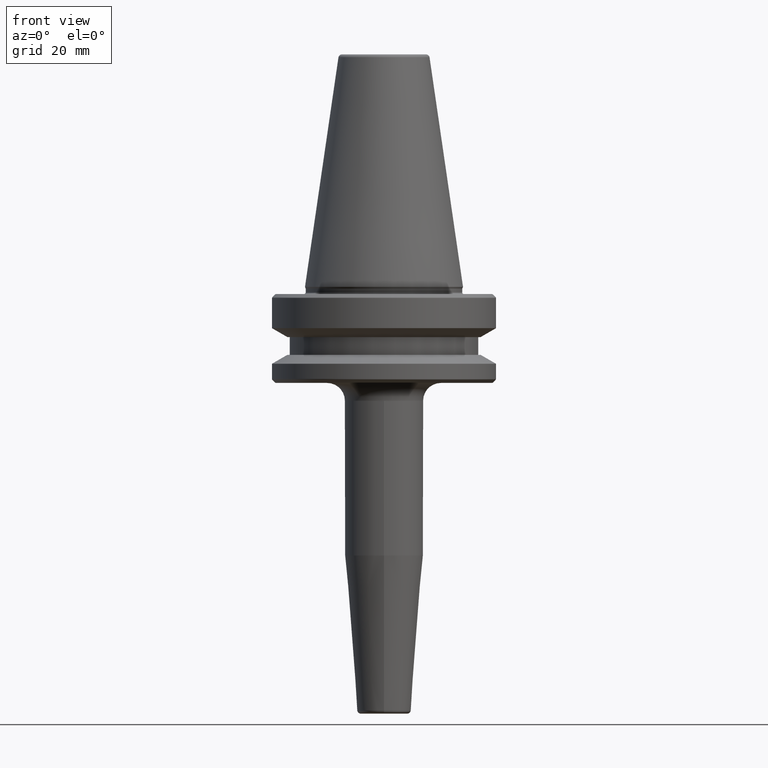
[diagram: clean part render]
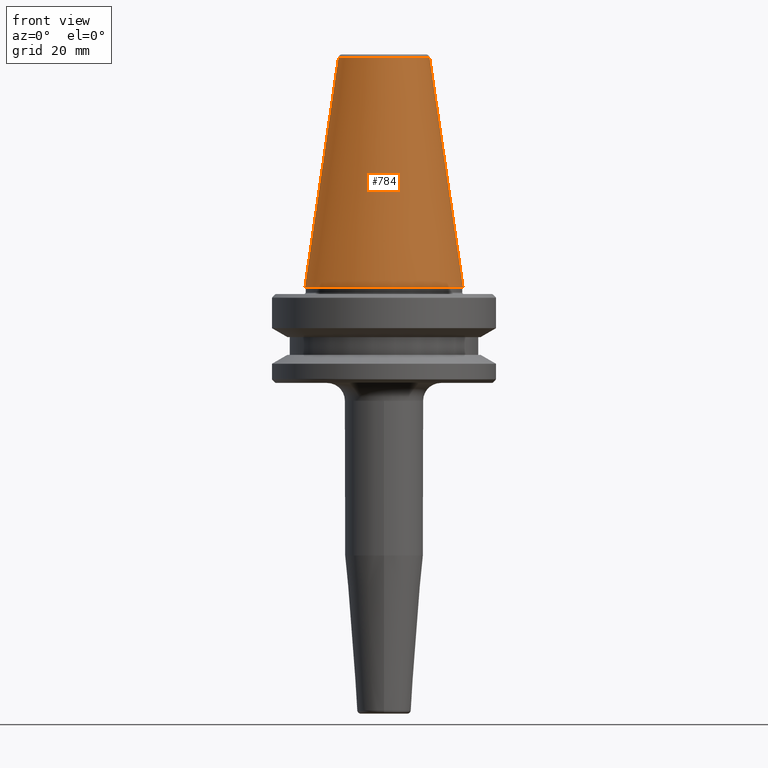
[diagram: same view with one face highlighted and labeled with its STEP entity id]
A machine part, front view. The second image highlights one B-rep face of the part: STEP entity #784.
In plain terms, the highlighted conical surface has half-angle 8.297 deg.
Its self-contained STEP definition (entity closure, byte-faithful):
#9 = ORIENTED_EDGE ( 'NONE', *, *, #173, .F. ) ;
#31 = DIRECTION ( 'NONE',  ( 0.1443082272673071000, 1.767266086135364600E-017, -0.9895327864921743500 ) ) ;
#43 = EDGE_LOOP ( 'NONE', ( #9, #660, #1155, #537 ) ) ;
#48 = VERTEX_POINT ( 'NONE', #1094 ) ;
#66 = LINE ( 'NONE', #676, #269 ) ;
#84 = DIRECTION ( 'NONE',  ( -0.1443082272673071000, 0.0000000000000000000, -0.9895327864921743500 ) ) ;
#108 = CARTESIAN_POINT ( 'NONE',  ( -12.81219950706224800, 0.0000000000000000000, 64.54430822726730800 ) ) ;
#112 = LINE ( 'NONE', #1198, #344 ) ;
#138 = VERTEX_POINT ( 'NONE', #353 ) ;
#150 = DIRECTION ( 'NONE',  ( 1.000000000000000000, 0.0000000000000000000, 0.0000000000000000000 ) ) ;
#168 = CONICAL_SURFACE ( 'NONE', #284, 12.81219950706224800, 0.1448138465474191100 ) ;
#173 = EDGE_CURVE ( 'NONE', #1004, #48, #112, .T. ) ;
#269 = VECTOR ( 'NONE', #84, 1000.000000000000000 ) ;
#284 = AXIS2_PLACEMENT_3D ( 'NONE', #983, #532, #973 ) ;
#344 = VECTOR ( 'NONE', #31, 1000.000000000000000 ) ;
#353 = CARTESIAN_POINT ( 'NONE',  ( -22.22500000000000500, 2.721777511104993200E-015, 0.0000000000000000000 ) ) ;
#508 = CARTESIAN_POINT ( 'NONE',  ( 12.81219950706224800, 2.145409711370550300E-015, 64.54430822726730800 ) ) ;
#532 = DIRECTION ( 'NONE',  ( 0.0000000000000000000, 0.0000000000000000000, -1.000000000000000000 ) ) ;
#537 = ORIENTED_EDGE ( 'NONE', *, *, #928, .T. ) ;
#638 = CARTESIAN_POINT ( 'NONE',  ( 0.0000000000000000000, 0.0000000000000000000, 64.54430822726730800 ) ) ;
#641 = CIRCLE ( 'NONE', #680, 12.81219950706224800 ) ;
#660 = ORIENTED_EDGE ( 'NONE', *, *, #1199, .F. ) ;
#676 = CARTESIAN_POINT ( 'NONE',  ( -12.81219950706224800, 0.0000000000000000000, 64.54430822726730800 ) ) ;
#680 = AXIS2_PLACEMENT_3D ( 'NONE', #638, #764, #958 ) ;
#709 = FACE_OUTER_BOUND ( 'NONE', #43, .T. ) ;
#734 = DIRECTION ( 'NONE',  ( -0.0000000000000000000, -0.0000000000000000000, 1.000000000000000000 ) ) ;
#764 = DIRECTION ( 'NONE',  ( -0.0000000000000000000, -0.0000000000000000000, 1.000000000000000000 ) ) ;
#779 = AXIS2_PLACEMENT_3D ( 'NONE', #1014, #734, #150 ) ;
#784 = ADVANCED_FACE ( 'NONE', ( #709 ), #168, .T. ) ;
#928 = EDGE_CURVE ( 'NONE', #138, #48, #1106, .T. ) ;
#958 = DIRECTION ( 'NONE',  ( 1.000000000000000000, 0.0000000000000000000, 0.0000000000000000000 ) ) ;
#973 = DIRECTION ( 'NONE',  ( -1.000000000000000000, 0.0000000000000000000, 0.0000000000000000000 ) ) ;
#983 = CARTESIAN_POINT ( 'NONE',  ( 0.0000000000000000000, 0.0000000000000000000, 64.54430822726730800 ) ) ;
#989 = EDGE_CURVE ( 'NONE', #1099, #138, #66, .T. ) ;
#1004 = VERTEX_POINT ( 'NONE', #508 ) ;
#1014 = CARTESIAN_POINT ( 'NONE',  ( 0.0000000000000000000, 0.0000000000000000000, 0.0000000000000000000 ) ) ;
#1094 = CARTESIAN_POINT ( 'NONE',  ( 22.22500000000000500, 0.0000000000000000000, 0.0000000000000000000 ) ) ;
#1099 = VERTEX_POINT ( 'NONE', #108 ) ;
#1106 = CIRCLE ( 'NONE', #779, 22.22500000000000500 ) ;
#1155 = ORIENTED_EDGE ( 'NONE', *, *, #989, .T. ) ;
#1198 = CARTESIAN_POINT ( 'NONE',  ( 12.81219950706224800, 1.569041911636107800E-015, 64.54430822726730800 ) ) ;
#1199 = EDGE_CURVE ( 'NONE', #1099, #1004, #641, .T. ) ;